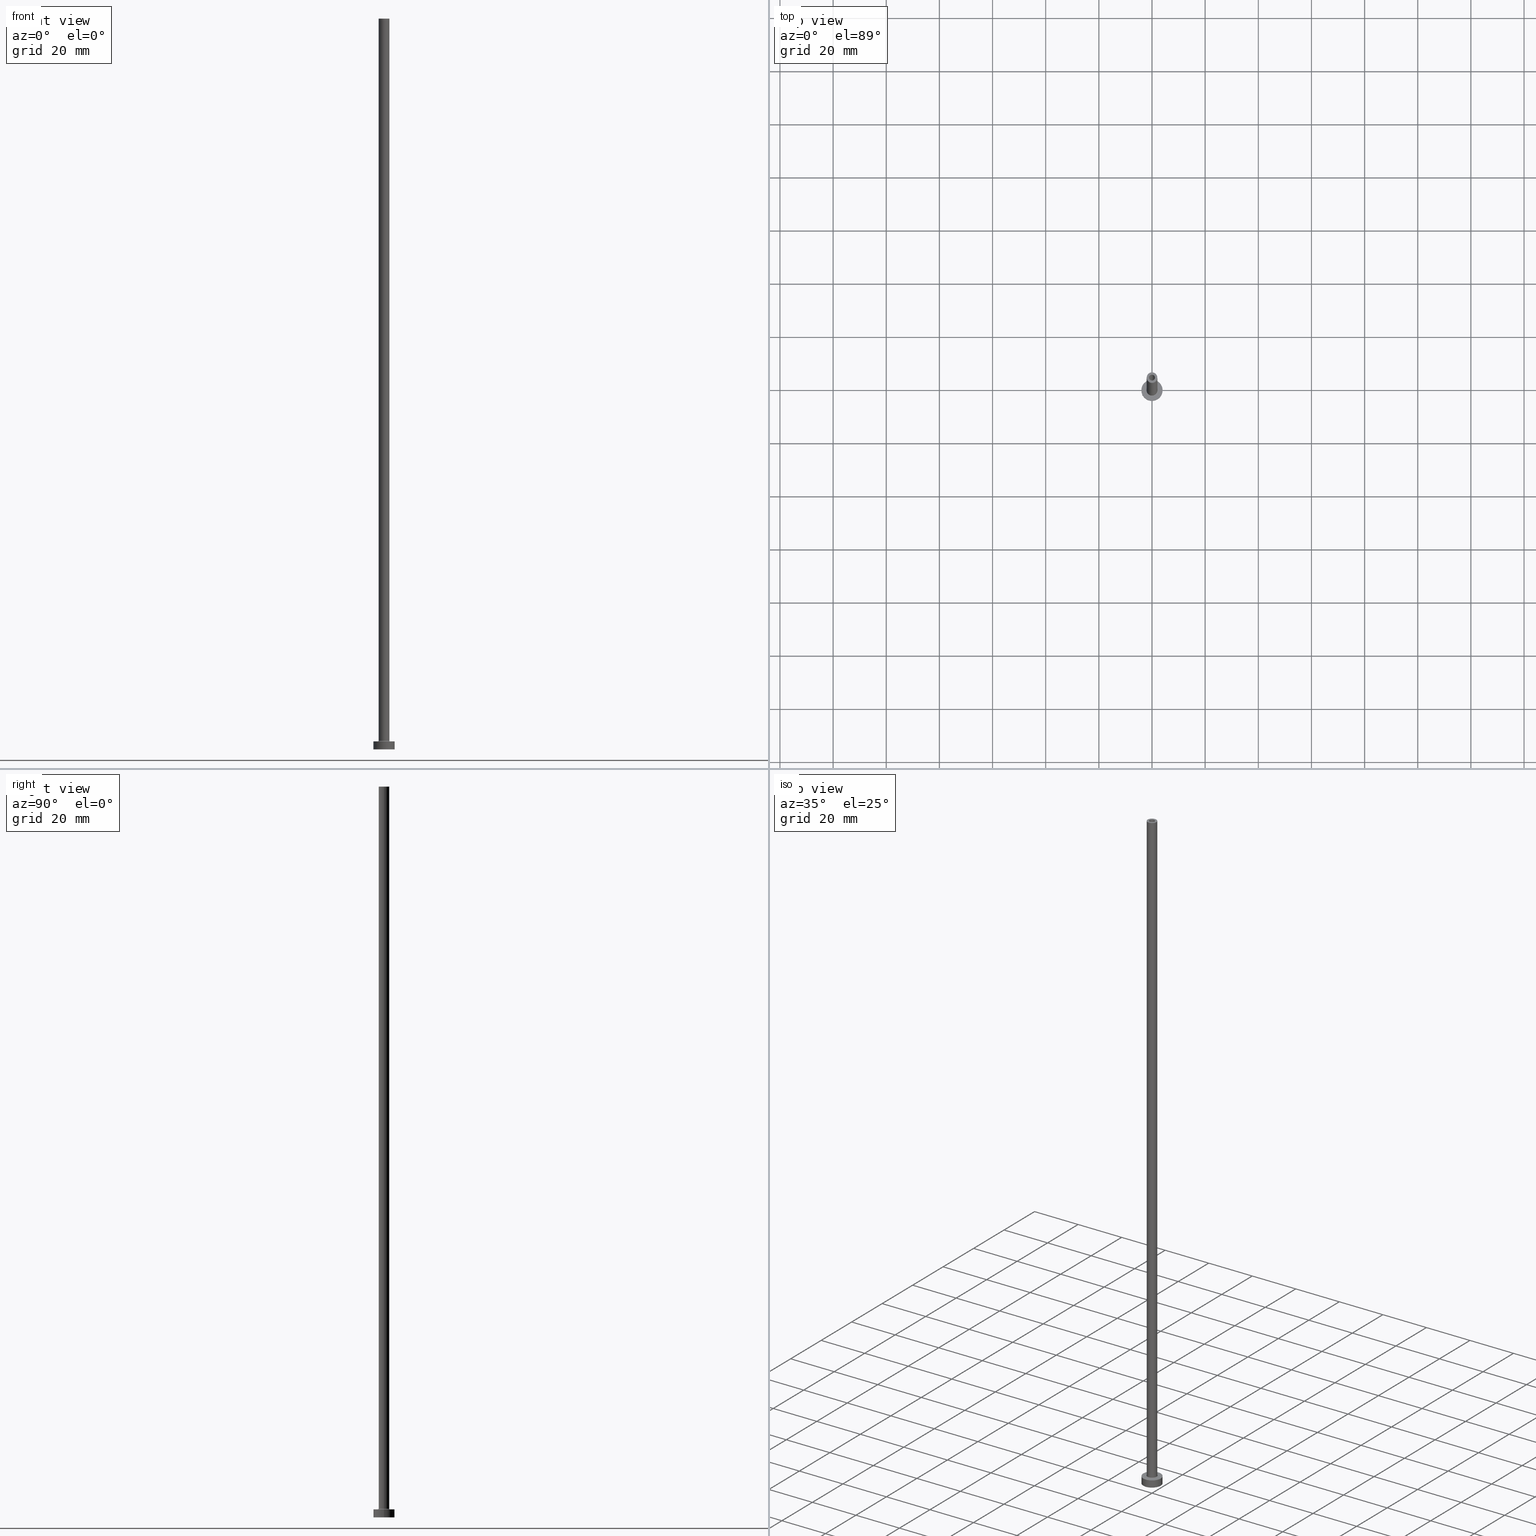
[diagram: canonical four-view strip — front | top / right | iso, engineering-drawing reading convention]
A machine part, canonical four-view strip (front | top / right | iso — engineering-drawing reading convention). The complete STEP part file that produces these views, byte-faithful:
ISO-10303-21;
HEADER;
FILE_DESCRIPTION (( 'STEP AP203' ),
    '1' );
FILE_NAME ('8296.STEP',
    '2023-02-13T18:09:01',
    ( '' ),
    ( '' ),
    'SwSTEP 2.0',
    'SolidWorks 2019',
    '' );
FILE_SCHEMA (( 'CONFIG_CONTROL_DESIGN' ));
ENDSEC;

DATA;
#1 = ORIENTED_EDGE ( 'NONE', *, *, #306, .F. ) ;
#2 = ORIENTED_EDGE ( 'NONE', *, *, #380, .F. ) ;
#3 = ADVANCED_FACE ( 'NONE', ( #186 ), #155, .T. ) ;
#4 = ORIENTED_EDGE ( 'NONE', *, *, #416, .T. ) ;
#5 = AXIS2_PLACEMENT_3D ( 'NONE', #7, #150, #461 ) ;
#6 = DIRECTION ( 'NONE',  ( 1.000000000000000000, 0.000000000000000000, 0.000000000000000000 ) ) ;
#7 = CARTESIAN_POINT ( 'NONE',  ( 0.000000000000000000, 0.000000000000000000, 275.0000000000000000 ) ) ;
#8 = ORIENTED_EDGE ( 'NONE', *, *, #322, .F. ) ;
#9 = CC_DESIGN_PERSON_AND_ORGANIZATION_ASSIGNMENT ( #433, #137, ( #19 ) ) ;
#10 = VECTOR ( 'NONE', #284, 1000.000000000000000 ) ;
#11 = CARTESIAN_POINT ( 'NONE',  ( 0.000000000000000000, 0.000000000000000000, 275.0000000000000000 ) ) ;
#12 = CARTESIAN_POINT ( 'NONE',  ( 1.250000000000000000, 1.530808498934191571E-16, 0.000000000000000000 ) ) ;
#13 = CC_DESIGN_PERSON_AND_ORGANIZATION_ASSIGNMENT ( #159, #448, ( #178 ) ) ;
#14 = DIRECTION ( 'NONE',  ( 0.000000000000000000, 0.000000000000000000, 1.000000000000000000 ) ) ;
#15 = APPROVAL_DATE_TIME ( #49, #89 ) ;
#16 = DIRECTION ( 'NONE',  ( 0.000000000000000000, 0.000000000000000000, -1.000000000000000000 ) ) ;
#17 = CARTESIAN_POINT ( 'NONE',  ( 0.000000000000000000, 0.000000000000000000, 275.0000000000000000 ) ) ;
#18 = VECTOR ( 'NONE', #392, 1000.000000000000000 ) ;
#19 = PRODUCT_DEFINITION_FORMATION_WITH_SPECIFIED_SOURCE ( 'LIBOVOLN�', '', #109, .NOT_KNOWN. ) ;
#20 = ADVANCED_FACE ( 'NONE', ( #415 ), #305, .F. ) ;
#21 = FACE_OUTER_BOUND ( 'NONE', #286, .T. ) ;
#22 = ORIENTED_EDGE ( 'NONE', *, *, #354, .T. ) ;
#23 = AXIS2_PLACEMENT_3D ( 'NONE', #451, #126, #423 ) ;
#24 = CARTESIAN_POINT ( 'NONE',  ( 0.000000000000000000, 0.000000000000000000, 3.000000000000000000 ) ) ;
#25 = APPROVAL_PERSON_ORGANIZATION ( #407, #368, #163 ) ;
#26 = CARTESIAN_POINT ( 'NONE',  ( 0.000000000000000000, 0.000000000000000000, 240.0000000000000284 ) ) ;
#27 = EDGE_CURVE ( 'NONE', #172, #352, #408, .T. ) ;
#28 = CARTESIAN_POINT ( 'NONE',  ( 0.000000000000000000, 0.000000000000000000, 3.000000000000000000 ) ) ;
#29 = VERTEX_POINT ( 'NONE', #50 ) ;
#30 = DIRECTION ( 'NONE',  ( 0.000000000000000000, 0.000000000000000000, 1.000000000000000000 ) ) ;
#31 = AXIS2_PLACEMENT_3D ( 'NONE', #58, #199, #348 ) ;
#32 = DATE_TIME_ROLE ( 'classification_date' ) ;
#33 = FACE_OUTER_BOUND ( 'NONE', #397, .T. ) ;
#34 = ORIENTED_EDGE ( 'NONE', *, *, #153, .F. ) ;
#35 = ADVANCED_FACE ( 'NONE', ( #188 ), #83, .T. ) ;
#36 = AXIS2_PLACEMENT_3D ( 'NONE', #67, #215, #6 ) ;
#37 = CARTESIAN_POINT ( 'NONE',  ( 0.000000000000000000, 0.000000000000000000, 243.5355339059327662 ) ) ;
#38 = AXIS2_PLACEMENT_3D ( 'NONE', #340, #14, #135 ) ;
#39 = DIRECTION ( 'NONE',  ( 1.224646799147353207E-16, 1.000000000000000000, -0.000000000000000000 ) ) ;
#40 =( LENGTH_UNIT ( ) NAMED_UNIT ( * ) SI_UNIT ( .MILLI., .METRE. ) );
#41 = ORIENTED_EDGE ( 'NONE', *, *, #130, .T. ) ;
#42 = DIRECTION ( 'NONE',  ( -0.000000000000000000, -0.000000000000000000, -1.000000000000000000 ) ) ;
#43 = FACE_OUTER_BOUND ( 'NONE', #149, .T. ) ;
#44 = ADVANCED_FACE ( 'NONE', ( #191 ), #161, .F. ) ;
#45 = AXIS2_PLACEMENT_3D ( 'NONE', #75, #371, #176 ) ;
#46 = LOCAL_TIME ( 19, 9, 1.000000000000000000, #391 ) ;
#47 = CARTESIAN_POINT ( 'NONE',  ( 2.000000000000000000, 2.449293598294706414E-16, 275.0000000000000000 ) ) ;
#48 = DIRECTION ( 'NONE',  ( 1.000000000000000000, 0.000000000000000000, 0.000000000000000000 ) ) ;
#49 = DATE_AND_TIME ( #116, #349 ) ;
#50 = CARTESIAN_POINT ( 'NONE',  ( -1.100000000000000089, 0.000000000000000000, 240.0000000000000284 ) ) ;
#51 = DIRECTION ( 'NONE',  ( -1.000000000000000000, 0.000000000000000000, 0.000000000000000000 ) ) ;
#52 = AXIS2_PLACEMENT_3D ( 'NONE', #393, #250, #141 ) ;
#53 = ADVANCED_FACE ( 'NONE', ( #449, #43 ), #450, .F. ) ;
#54 = VERTEX_POINT ( 'NONE', #219 ) ;
#55 = DIRECTION ( 'NONE',  ( -0.000000000000000000, -0.000000000000000000, -1.000000000000000000 ) ) ;
#56 = PLANE ( 'NONE',  #197 ) ;
#57 = CIRCLE ( 'NONE', #36, 4.000000000000000000 ) ;
#58 = CARTESIAN_POINT ( 'NONE',  ( 0.000000000000000000, 0.000000000000000000, 3.300000000000025135 ) ) ;
#59 = AXIS2_PLACEMENT_3D ( 'NONE', #37, #325, #401 ) ;
#60 = EDGE_LOOP ( 'NONE', ( #355, #395, #285, #249 ) ) ;
#61 = CARTESIAN_POINT ( 'NONE',  ( 0.000000000000000000, 0.000000000000000000, 0.000000000000000000 ) ) ;
#62 = ORIENTED_EDGE ( 'NONE', *, *, #66, .F. ) ;
#63 = CARTESIAN_POINT ( 'NONE',  ( 0.000000000000000000, 0.000000000000000000, 0.000000000000000000 ) ) ;
#64 = CALENDAR_DATE ( 2023, 13, 2 ) ;
#65 = CARTESIAN_POINT ( 'NONE',  ( 2.299999999999999822, 0.000000000000000000, 3.300000000000025135 ) ) ;
#66 = EDGE_CURVE ( 'NONE', #54, #202, #410, .T. ) ;
#67 = CARTESIAN_POINT ( 'NONE',  ( 0.000000000000000000, 0.000000000000000000, 3.000000000000000000 ) ) ;
#68 = DIRECTION ( 'NONE',  ( 0.000000000000000000, 0.000000000000000000, 1.000000000000000000 ) ) ;
#69 = ORIENTED_EDGE ( 'NONE', *, *, #343, .T. ) ;
#70 = DIRECTION ( 'NONE',  ( 0.000000000000000000, 0.000000000000000000, -1.000000000000000000 ) ) ;
#71 = ORIENTED_EDGE ( 'NONE', *, *, #160, .F. ) ;
#72 = MANIFOLD_SOLID_BREP ( 'Odebrat vysunut�m4', #242 ) ;
#73 = AXIS2_PLACEMENT_3D ( 'NONE', #61, #316, #440 ) ;
#74 = VERTEX_POINT ( 'NONE', #336 ) ;
#75 = CARTESIAN_POINT ( 'NONE',  ( 0.000000000000000000, 0.000000000000000000, 240.0000000000000284 ) ) ;
#76 = ORIENTED_EDGE ( 'NONE', *, *, #373, .T. ) ;
#77 = DIRECTION ( 'NONE',  ( 1.000000000000000000, 0.000000000000000000, -0.000000000000000000 ) ) ;
#78 = EDGE_LOOP ( 'NONE', ( #390, #365, #213, #329 ) ) ;
#79 = ADVANCED_FACE ( 'NONE', ( #294, #113 ), #56, .T. ) ;
#80 = DIRECTION ( 'NONE',  ( -0.000000000000000000, -0.000000000000000000, -1.000000000000000000 ) ) ;
#81 = TOROIDAL_SURFACE ( 'NONE', #31, 2.299999999999999822, 0.2999999999999999889 ) ;
#82 = APPLICATION_PROTOCOL_DEFINITION ( 'international standard', 'config_control_design', 1994, #110 ) ;
#83 = CYLINDRICAL_SURFACE ( 'NONE', #220, 4.000000000000000000 ) ;
#84 = PERSON_AND_ORGANIZATION ( #258, #430 ) ;
#85 = APPLICATION_CONTEXT ( 'configuration controlled 3d designs of mechanical parts and assemblies' ) ;
#86 = CIRCLE ( 'NONE', #382, 1.100000000000000089 ) ;
#87 = ORIENTED_EDGE ( 'NONE', *, *, #271, .T. ) ;
#88 = DIRECTION ( 'NONE',  ( 0.000000000000000000, 0.000000000000000000, -1.000000000000000000 ) ) ;
#89 = APPROVAL ( #299, 'NEUR�EN�' ) ;
#90 = UNCERTAINTY_MEASURE_WITH_UNIT (LENGTH_MEASURE( 1.000000000000000082E-05 ), #40, 'distance_accuracy_value', 'NONE');
#91 = CARTESIAN_POINT ( 'NONE',  ( -4.000000000000000000, 0.000000000000000000, 3.000000000000000000 ) ) ;
#92 = AXIS2_PLACEMENT_3D ( 'NONE', #359, #39, #243 ) ;
#93 = ORIENTED_EDGE ( 'NONE', *, *, #130, .F. ) ;
#94 = PRODUCT_RELATED_PRODUCT_CATEGORY ( 'detail', '', ( #109 ) ) ;
#95 = FACE_OUTER_BOUND ( 'NONE', #240, .T. ) ;
#96 = CIRCLE ( 'NONE', #404, 1.100000000000000089 ) ;
#97 = ORIENTED_EDGE ( 'NONE', *, *, #388, .T. ) ;
#98 = ADVANCED_FACE ( 'NONE', ( #138 ), #148, .T. ) ;
#99 = ORIENTED_EDGE ( 'NONE', *, *, #121, .F. ) ;
#100 = CC_DESIGN_PERSON_AND_ORGANIZATION_ASSIGNMENT ( #323, #206, ( #19 ) ) ;
#101 = CARTESIAN_POINT ( 'NONE',  ( 4.000000000000000000, 4.898587196589412829E-16, 3.000000000000000000 ) ) ;
#102 = CIRCLE ( 'NONE', #128, 1.250000000000000000 ) ;
#103 = DIRECTION ( 'NONE',  ( 1.000000000000000000, 0.000000000000000000, 0.000000000000000000 ) ) ;
#104 = EDGE_CURVE ( 'NONE', #277, #402, #57, .T. ) ;
#105 = LINE ( 'NONE', #328, #10 ) ;
#106 = EDGE_LOOP ( 'NONE', ( #362, #143 ) ) ;
#107 = CC_DESIGN_PERSON_AND_ORGANIZATION_ASSIGNMENT ( #241, #173, ( #265 ) ) ;
#108 = DIRECTION ( 'NONE',  ( 1.000000000000000000, 0.000000000000000000, 0.000000000000000000 ) ) ;
#109 = PRODUCT ( '8296', '8296', '', ( #414 ) ) ;
#110 = APPLICATION_CONTEXT ( 'configuration controlled 3d designs of mechanical parts and assemblies' ) ;
#111 = CALENDAR_DATE ( 2023, 13, 2 ) ;
#112 = PERSON_AND_ORGANIZATION_ROLE ( 'design_owner' ) ;
#113 = FACE_OUTER_BOUND ( 'NONE', #147, .T. ) ;
#114 = CYLINDRICAL_SURFACE ( 'NONE', #444, 1.100000000000000089 ) ;
#115 = AXIS2_PLACEMENT_3D ( 'NONE', #264, #375, #51 ) ;
#116 = CALENDAR_DATE ( 2023, 13, 2 ) ;
#117 = ORIENTED_EDGE ( 'NONE', *, *, #203, .F. ) ;
#118 =( GEOMETRIC_REPRESENTATION_CONTEXT ( 3 ) GLOBAL_UNCERTAINTY_ASSIGNED_CONTEXT ( ( #90 ) ) GLOBAL_UNIT_ASSIGNED_CONTEXT ( ( #40, #175, #321 ) ) REPRESENTATION_CONTEXT ( 'NONE', 'WORKASPACE' ) );
#119 = CALENDAR_DATE ( 2023, 13, 2 ) ;
#120 = CARTESIAN_POINT ( 'NONE',  ( 0.000000000000000000, 0.000000000000000000, 240.0000000000000284 ) ) ;
#121 = EDGE_CURVE ( 'NONE', #326, #290, #298, .T. ) ;
#122 = FACE_OUTER_BOUND ( 'NONE', #387, .T. ) ;
#123 = PERSON_AND_ORGANIZATION ( #258, #430 ) ;
#124 = DIRECTION ( 'NONE',  ( -1.000000000000000000, 0.000000000000000000, 0.000000000000000000 ) ) ;
#125 = APPROVAL_STATUS ( 'not_yet_approved' ) ;
#126 = DIRECTION ( 'NONE',  ( -0.000000000000000000, -0.000000000000000000, -1.000000000000000000 ) ) ;
#127 = FACE_OUTER_BOUND ( 'NONE', #439, .T. ) ;
#128 = AXIS2_PLACEMENT_3D ( 'NONE', #425, #381, #48 ) ;
#129 = APPROVAL_PERSON_ORGANIZATION ( #123, #89, #263 ) ;
#130 = EDGE_CURVE ( 'NONE', #202, #350, #458, .T. ) ;
#131 = DIRECTION ( 'NONE',  ( 0.000000000000000000, 0.000000000000000000, 1.000000000000000000 ) ) ;
#132 = CARTESIAN_POINT ( 'NONE',  ( 1.100000000000000089, 1.347111479062088503E-16, 240.0000000000000284 ) ) ;
#133 = CIRCLE ( 'NONE', #45, 1.250000000000000000 ) ;
#134 = ORIENTED_EDGE ( 'NONE', *, *, #121, .T. ) ;
#135 = DIRECTION ( 'NONE',  ( 1.000000000000000000, 0.000000000000000000, 0.000000000000000000 ) ) ;
#136 = EDGE_CURVE ( 'NONE', #202, #54, #293, .T. ) ;
#137 = PERSON_AND_ORGANIZATION_ROLE ( 'creator' ) ;
#138 = FACE_OUTER_BOUND ( 'NONE', #313, .T. ) ;
#139 = DIRECTION ( 'NONE',  ( 1.000000000000000000, 0.000000000000000000, 0.000000000000000000 ) ) ;
#140 = VERTEX_POINT ( 'NONE', #363 ) ;
#141 = DIRECTION ( 'NONE',  ( 1.000000000000000000, 0.000000000000000000, 0.000000000000000000 ) ) ;
#142 = ORIENTED_EDGE ( 'NONE', *, *, #426, .T. ) ;
#143 = ORIENTED_EDGE ( 'NONE', *, *, #253, .T. ) ;
#144 = EDGE_CURVE ( 'NONE', #459, #290, #229, .T. ) ;
#145 = CARTESIAN_POINT ( 'NONE',  ( 0.000000000000000000, 0.000000000000000000, 240.0000000000000284 ) ) ;
#146 = AXIS2_PLACEMENT_3D ( 'NONE', #421, #230, #195 ) ;
#147 = EDGE_LOOP ( 'NONE', ( #273, #69 ) ) ;
#148 = CYLINDRICAL_SURFACE ( 'NONE', #234, 2.000000000000000000 ) ;
#149 = EDGE_LOOP ( 'NONE', ( #251, #311 ) ) ;
#150 = DIRECTION ( 'NONE',  ( 0.000000000000000000, 0.000000000000000000, 1.000000000000000000 ) ) ;
#151 = VERTEX_POINT ( 'NONE', #400 ) ;
#152 = AXIS2_PLACEMENT_3D ( 'NONE', #63, #207, #385 ) ;
#153 = EDGE_CURVE ( 'NONE', #347, #151, #222, .T. ) ;
#154 = APPROVAL_STATUS ( 'not_yet_approved' ) ;
#155 = CYLINDRICAL_SURFACE ( 'NONE', #192, 2.000000000000000000 ) ;
#156 = CARTESIAN_POINT ( 'NONE',  ( 2.000000000000000000, 2.449293598294706414E-16, 275.0000000000000000 ) ) ;
#157 = APPROVAL ( #125, 'NEUR�EN�' ) ;
#158 = EDGE_LOOP ( 'NONE', ( #2, #134, #267, #315 ) ) ;
#159 = PERSON_AND_ORGANIZATION ( #258, #430 ) ;
#160 = EDGE_CURVE ( 'NONE', #236, #326, #346, .T. ) ;
#161 = CYLINDRICAL_SURFACE ( 'NONE', #435, 1.250000000000000000 ) ;
#162 = CARTESIAN_POINT ( 'NONE',  ( -2.000000000000000000, 0.000000000000000000, 275.0000000000000000 ) ) ;
#163 = APPROVAL_ROLE ( '' ) ;
#164 = CARTESIAN_POINT ( 'NONE',  ( -1.100000000000000089, 0.000000000000000000, 275.0000000000000000 ) ) ;
#165 = DIRECTION ( 'NONE',  ( 1.000000000000000000, 0.000000000000000000, -0.000000000000000000 ) ) ;
#166 = ORIENTED_EDGE ( 'NONE', *, *, #253, .F. ) ;
#167 = AXIS2_PLACEMENT_3D ( 'NONE', #28, #55, #384 ) ;
#168 = ADVANCED_FACE ( 'NONE', ( #122 ), #114, .F. ) ;
#169 = ORIENTED_EDGE ( 'NONE', *, *, #431, .T. ) ;
#170 = ORIENTED_EDGE ( 'NONE', *, *, #416, .F. ) ;
#171 = CIRCLE ( 'NONE', #52, 2.000000000000000000 ) ;
#172 = VERTEX_POINT ( 'NONE', #156 ) ;
#173 = PERSON_AND_ORGANIZATION_ROLE ( 'classification_officer' ) ;
#174 = DIRECTION ( 'NONE',  ( -1.000000000000000000, 0.000000000000000000, 0.000000000000000000 ) ) ;
#175 =( NAMED_UNIT ( * ) PLANE_ANGLE_UNIT ( ) SI_UNIT ( $, .RADIAN. ) );
#176 = DIRECTION ( 'NONE',  ( 1.000000000000000000, 0.000000000000000000, 0.000000000000000000 ) ) ;
#177 = ORIENTED_EDGE ( 'NONE', *, *, #218, .T. ) ;
#178 = PRODUCT_DEFINITION ( 'NEZN�M�', '', #19, #309 ) ;
#179 = COORDINATED_UNIVERSAL_TIME_OFFSET ( 1, 0, .AHEAD. ) ;
#180 = DIRECTION ( 'NONE',  ( 0.000000000000000000, 0.000000000000000000, 1.000000000000000000 ) ) ;
#181 = EDGE_LOOP ( 'NONE', ( #255, #41, #279, #317 ) ) ;
#182 = CARTESIAN_POINT ( 'NONE',  ( 0.000000000000000000, 0.000000000000000000, 275.0000000000000000 ) ) ;
#183 = ORIENTED_EDGE ( 'NONE', *, *, #354, .F. ) ;
#184 = ORIENTED_EDGE ( 'NONE', *, *, #203, .T. ) ;
#185 = ORIENTED_EDGE ( 'NONE', *, *, #388, .F. ) ;
#186 = FACE_OUTER_BOUND ( 'NONE', #78, .T. ) ;
#187 = AXIS2_PLACEMENT_3D ( 'NONE', #370, #345, #266 ) ;
#188 = FACE_OUTER_BOUND ( 'NONE', #424, .T. ) ;
#189 = CARTESIAN_POINT ( 'NONE',  ( -2.000000000000000000, 0.000000000000000000, 275.0000000000000000 ) ) ;
#190 = EDGE_CURVE ( 'NONE', #54, #29, #376, .T. ) ;
#191 = FACE_OUTER_BOUND ( 'NONE', #60, .T. ) ;
#192 = AXIS2_PLACEMENT_3D ( 'NONE', #11, #378, #261 ) ;
#193 = CARTESIAN_POINT ( 'NONE',  ( 0.000000000000000000, 0.000000000000000000, 0.000000000000000000 ) ) ;
#194 = APPROVAL_PERSON_ORGANIZATION ( #84, #157, #441 ) ;
#195 = DIRECTION ( 'NONE',  ( 1.000000000000000000, 0.000000000000000000, 0.000000000000000000 ) ) ;
#196 = ORIENTED_EDGE ( 'NONE', *, *, #153, .T. ) ;
#197 = AXIS2_PLACEMENT_3D ( 'NONE', #24, #312, #351 ) ;
#198 = ORIENTED_EDGE ( 'NONE', *, *, #27, .T. ) ;
#199 = DIRECTION ( 'NONE',  ( 0.000000000000000000, 0.000000000000000000, 1.000000000000000000 ) ) ;
#200 = CIRCLE ( 'NONE', #5, 2.000000000000000000 ) ;
#201 = DIRECTION ( 'NONE',  ( -0.000000000000000000, -0.000000000000000000, -1.000000000000000000 ) ) ;
#202 = VERTEX_POINT ( 'NONE', #307 ) ;
#203 = EDGE_CURVE ( 'NONE', #352, #326, #287, .T. ) ;
#204 = CARTESIAN_POINT ( 'NONE',  ( 0.000000000000000000, 0.000000000000000000, 0.000000000000000000 ) ) ;
#205 = ORIENTED_EDGE ( 'NONE', *, *, #104, .F. ) ;
#206 = PERSON_AND_ORGANIZATION_ROLE ( 'design_supplier' ) ;
#207 = DIRECTION ( 'NONE',  ( -0.000000000000000000, -0.000000000000000000, -1.000000000000000000 ) ) ;
#208 = VECTOR ( 'NONE', #201, 1000.000000000000000 ) ;
#209 = LINE ( 'NONE', #101, #344 ) ;
#210 = VERTEX_POINT ( 'NONE', #12 ) ;
#211 = FACE_OUTER_BOUND ( 'NONE', #158, .T. ) ;
#212 = ADVANCED_BREP_SHAPE_REPRESENTATION ( '8296', ( #72, #216 ), #118 ) ;
#213 = ORIENTED_EDGE ( 'NONE', *, *, #160, .T. ) ;
#214 = APPROVAL_DATE_TIME ( #239, #157 ) ;
#215 = DIRECTION ( 'NONE',  ( 0.000000000000000000, 0.000000000000000000, 1.000000000000000000 ) ) ;
#216 = AXIS2_PLACEMENT_3D ( 'NONE', #193, #296, #259 ) ;
#217 = ORIENTED_EDGE ( 'NONE', *, *, #248, .T. ) ;
#218 = EDGE_CURVE ( 'NONE', #140, #394, #102, .T. ) ;
#219 = CARTESIAN_POINT ( 'NONE',  ( -1.100000000000000089, 0.000000000000000000, 275.0000000000000000 ) ) ;
#220 = AXIS2_PLACEMENT_3D ( 'NONE', #339, #225, #124 ) ;
#221 = COORDINATED_UNIVERSAL_TIME_OFFSET ( 1, 0, .AHEAD. ) ;
#222 = CIRCLE ( 'NONE', #187, 4.000000000000000000 ) ;
#223 = ADVANCED_FACE ( 'NONE', ( #303, #21 ), #342, .T. ) ;
#224 = DIRECTION ( 'NONE',  ( -1.000000000000000000, 0.000000000000000000, 0.000000000000000000 ) ) ;
#225 = DIRECTION ( 'NONE',  ( -0.000000000000000000, -0.000000000000000000, -1.000000000000000000 ) ) ;
#226 = DIRECTION ( 'NONE',  ( -0.000000000000000000, -0.000000000000000000, -1.000000000000000000 ) ) ;
#227 = DIRECTION ( 'NONE',  ( 0.000000000000000000, 0.000000000000000000, -1.000000000000000000 ) ) ;
#228 = AXIS2_PLACEMENT_3D ( 'NONE', #270, #372, #420 ) ;
#229 = CIRCLE ( 'NONE', #335, 2.299999999999999822 ) ;
#230 = DIRECTION ( 'NONE',  ( 0.000000000000000000, 0.000000000000000000, 1.000000000000000000 ) ) ;
#231 = VECTOR ( 'NONE', #226, 1000.000000000000000 ) ;
#232 = CC_DESIGN_APPROVAL ( #157, ( #19 ) ) ;
#233 = ADVANCED_FACE ( 'NONE', ( #127 ), #262, .T. ) ;
#234 = AXIS2_PLACEMENT_3D ( 'NONE', #182, #320, #174 ) ;
#235 = CARTESIAN_POINT ( 'NONE',  ( -2.000000000000000000, 0.000000000000000000, 3.300000000000025135 ) ) ;
#236 = VERTEX_POINT ( 'NONE', #189 ) ;
#237 = PLANE ( 'NONE',  #73 ) ;
#238 = CC_DESIGN_DATE_AND_TIME_ASSIGNMENT ( #358, #32, ( #265 ) ) ;
#239 = DATE_AND_TIME ( #319, #246 ) ;
#240 = EDGE_LOOP ( 'NONE', ( #34, #183 ) ) ;
#241 = PERSON_AND_ORGANIZATION ( #258, #430 ) ;
#242 = CLOSED_SHELL ( 'NONE', ( #20, #44, #443, #98, #35, #233, #79, #275, #3, #223, #260, #447, #53, #168 ) ) ;
#243 = DIRECTION ( 'NONE',  ( -1.000000000000000000, 1.224646799147353207E-16, 0.000000000000000000 ) ) ;
#244 = ORIENTED_EDGE ( 'NONE', *, *, #190, .T. ) ;
#245 = VECTOR ( 'NONE', #274, 1000.000000000000000 ) ;
#246 = LOCAL_TIME ( 19, 9, 1.000000000000000000, #179 ) ;
#247 = DIRECTION ( 'NONE',  ( -0.000000000000000000, -0.000000000000000000, -1.000000000000000000 ) ) ;
#248 = EDGE_CURVE ( 'NONE', #236, #172, #301, .T. ) ;
#249 = ORIENTED_EDGE ( 'NONE', *, *, #373, .F. ) ;
#250 = DIRECTION ( 'NONE',  ( 0.000000000000000000, 0.000000000000000000, 1.000000000000000000 ) ) ;
#251 = ORIENTED_EDGE ( 'NONE', *, *, #291, .F. ) ;
#252 = CARTESIAN_POINT ( 'NONE',  ( 2.299999999999999822, 0.000000000000000000, 3.000000000000012434 ) ) ;
#253 = EDGE_CURVE ( 'NONE', #290, #459, #452, .T. ) ;
#254 = CC_DESIGN_APPROVAL ( #368, ( #265 ) ) ;
#255 = ORIENTED_EDGE ( 'NONE', *, *, #66, .T. ) ;
#256 = CARTESIAN_POINT ( 'NONE',  ( -4.000000000000000000, 0.000000000000000000, 3.000000000000000000 ) ) ;
#257 = ORIENTED_EDGE ( 'NONE', *, *, #366, .F. ) ;
#258 = PERSON ( 'NEUR�EN�', 'NEUR�EN�', 'NEUR�EN�', ('NEUR�EN�'), ('NEUR�EN�'), ('NEUR�EN�') ) ;
#259 = DIRECTION ( 'NONE',  ( 1.000000000000000000, 0.000000000000000000, 0.000000000000000000 ) ) ;
#260 = ADVANCED_FACE ( 'NONE', ( #356 ), #81, .F. ) ;
#261 = DIRECTION ( 'NONE',  ( -1.000000000000000000, 0.000000000000000000, 0.000000000000000000 ) ) ;
#262 = CYLINDRICAL_SURFACE ( 'NONE', #278, 4.000000000000000000 ) ;
#263 = APPROVAL_ROLE ( '' ) ;
#264 = CARTESIAN_POINT ( 'NONE',  ( 0.000000000000000000, 0.000000000000000000, 275.0000000000000000 ) ) ;
#265 = SECURITY_CLASSIFICATION ( '', '', #280 ) ;
#266 = DIRECTION ( 'NONE',  ( 1.000000000000000000, 0.000000000000000000, 0.000000000000000000 ) ) ;
#267 = ORIENTED_EDGE ( 'NONE', *, *, #144, .F. ) ;
#268 = DIRECTION ( 'NONE',  ( -1.000000000000000000, 0.000000000000000000, 0.000000000000000000 ) ) ;
#269 = COORDINATED_UNIVERSAL_TIME_OFFSET ( 1, 0, .AHEAD. ) ;
#270 = CARTESIAN_POINT ( 'NONE',  ( 0.000000000000000000, 0.000000000000000000, 275.0000000000000000 ) ) ;
#271 = EDGE_CURVE ( 'NONE', #29, #350, #86, .T. ) ;
#272 = TOROIDAL_SURFACE ( 'NONE', #367, 2.299999999999999822, 0.2999999999999999889 ) ;
#273 = ORIENTED_EDGE ( 'NONE', *, *, #104, .T. ) ;
#274 = DIRECTION ( 'NONE',  ( 0.000000000000000000, 0.000000000000000000, -1.000000000000000000 ) ) ;
#275 = ADVANCED_FACE ( 'NONE', ( #429, #95 ), #237, .F. ) ;
#276 = DIRECTION ( 'NONE',  ( 1.000000000000000000, 0.000000000000000000, 0.000000000000000000 ) ) ;
#277 = VERTEX_POINT ( 'NONE', #256 ) ;
#278 = AXIS2_PLACEMENT_3D ( 'NONE', #411, #80, #224 ) ;
#279 = ORIENTED_EDGE ( 'NONE', *, *, #271, .F. ) ;
#280 = SECURITY_CLASSIFICATION_LEVEL ( 'unclassified' ) ;
#281 = CARTESIAN_POINT ( 'NONE',  ( 1.100000000000000089, 1.347111479062088503E-16, 275.0000000000000000 ) ) ;
#282 = AXIS2_PLACEMENT_3D ( 'NONE', #120, #418, #77 ) ;
#283 = DIRECTION ( 'NONE',  ( 1.000000000000000000, 0.000000000000000000, 0.000000000000000000 ) ) ;
#284 = DIRECTION ( 'NONE',  ( 0.000000000000000000, 0.000000000000000000, -1.000000000000000000 ) ) ;
#285 = ORIENTED_EDGE ( 'NONE', *, *, #366, .T. ) ;
#286 = EDGE_LOOP ( 'NONE', ( #217, #169 ) ) ;
#287 = CIRCLE ( 'NONE', #146, 2.000000000000000000 ) ;
#288 = LOCAL_TIME ( 19, 9, 1.000000000000000000, #445 ) ;
#289 = EDGE_LOOP ( 'NONE', ( #87, #4 ) ) ;
#290 = VERTEX_POINT ( 'NONE', #406 ) ;
#291 = EDGE_CURVE ( 'NONE', #394, #140, #133, .T. ) ;
#292 = CARTESIAN_POINT ( 'NONE',  ( 0.000000000000000000, 0.000000000000000000, 3.300000000000025135 ) ) ;
#293 = CIRCLE ( 'NONE', #422, 1.100000000000000089 ) ;
#294 = FACE_BOUND ( 'NONE', #106, .T. ) ;
#295 = DIRECTION ( 'NONE',  ( 0.000000000000000000, 0.000000000000000000, 1.000000000000000000 ) ) ;
#296 = DIRECTION ( 'NONE',  ( 0.000000000000000000, 0.000000000000000000, 1.000000000000000000 ) ) ;
#297 = ORIENTED_EDGE ( 'NONE', *, *, #343, .F. ) ;
#298 = CIRCLE ( 'NONE', #92, 0.2999999999999999334 ) ;
#299 = APPROVAL_STATUS ( 'not_yet_approved' ) ;
#300 = DIRECTION ( 'NONE',  ( -1.000000000000000000, 0.000000000000000000, 0.000000000000000000 ) ) ;
#301 = CIRCLE ( 'NONE', #38, 2.000000000000000000 ) ;
#302 = CC_DESIGN_APPROVAL ( #89, ( #178 ) ) ;
#303 = FACE_BOUND ( 'NONE', #361, .T. ) ;
#304 = DATE_AND_TIME ( #111, #288 ) ;
#305 = CYLINDRICAL_SURFACE ( 'NONE', #115, 1.100000000000000089 ) ;
#306 = EDGE_CURVE ( 'NONE', #140, #210, #334, .T. ) ;
#307 = CARTESIAN_POINT ( 'NONE',  ( 1.100000000000000089, 1.347111479062088503E-16, 275.0000000000000000 ) ) ;
#308 = DIRECTION ( 'NONE',  ( 1.000000000000000000, 0.000000000000000000, 0.000000000000000000 ) ) ;
#309 = DESIGN_CONTEXT ( 'detailed design', #110, 'design' ) ;
#310 = CIRCLE ( 'NONE', #152, 1.250000000000000000 ) ;
#311 = ORIENTED_EDGE ( 'NONE', *, *, #218, .F. ) ;
#312 = DIRECTION ( 'NONE',  ( 0.000000000000000000, 0.000000000000000000, 1.000000000000000000 ) ) ;
#313 = EDGE_LOOP ( 'NONE', ( #327, #198, #184, #71 ) ) ;
#314 = DIRECTION ( 'NONE',  ( 1.000000000000000000, 0.000000000000000000, 0.000000000000000000 ) ) ;
#315 = ORIENTED_EDGE ( 'NONE', *, *, #426, .F. ) ;
#316 = DIRECTION ( 'NONE',  ( 0.000000000000000000, 0.000000000000000000, 1.000000000000000000 ) ) ;
#317 = ORIENTED_EDGE ( 'NONE', *, *, #190, .F. ) ;
#318 = AXIS2_PLACEMENT_3D ( 'NONE', #204, #30, #308 ) ;
#319 = CALENDAR_DATE ( 2023, 13, 2 ) ;
#320 = DIRECTION ( 'NONE',  ( -0.000000000000000000, -0.000000000000000000, -1.000000000000000000 ) ) ;
#321 =( NAMED_UNIT ( * ) SI_UNIT ( $, .STERADIAN. ) SOLID_ANGLE_UNIT ( ) );
#322 = EDGE_CURVE ( 'NONE', #277, #347, #428, .T. ) ;
#323 = PERSON_AND_ORGANIZATION ( #258, #430 ) ;
#324 = CARTESIAN_POINT ( 'NONE',  ( 0.000000000000000000, 0.000000000000000000, 275.0000000000000000 ) ) ;
#325 = DIRECTION ( 'NONE',  ( 0.000000000000000000, 0.000000000000000000, -1.000000000000000000 ) ) ;
#326 = VERTEX_POINT ( 'NONE', #235 ) ;
#327 = ORIENTED_EDGE ( 'NONE', *, *, #431, .F. ) ;
#328 = CARTESIAN_POINT ( 'NONE',  ( -1.250000000000000000, 0.000000000000000000, 243.5355339059327662 ) ) ;
#329 = ORIENTED_EDGE ( 'NONE', *, *, #380, .T. ) ;
#330 = AXIS2_PLACEMENT_3D ( 'NONE', #17, #295, #165 ) ;
#331 = CYLINDRICAL_SURFACE ( 'NONE', #59, 1.250000000000000000 ) ;
#332 = ORIENTED_EDGE ( 'NONE', *, *, #338, .T. ) ;
#333 = DIRECTION ( 'NONE',  ( -0.000000000000000000, -0.000000000000000000, -1.000000000000000000 ) ) ;
#334 = LINE ( 'NONE', #398, #245 ) ;
#335 = AXIS2_PLACEMENT_3D ( 'NONE', #437, #247, #103 ) ;
#336 = CARTESIAN_POINT ( 'NONE',  ( -1.250000000000000000, 0.000000000000000000, 0.000000000000000000 ) ) ;
#337 = CARTESIAN_POINT ( 'NONE',  ( 0.000000000000000000, 0.000000000000000000, 275.0000000000000000 ) ) ;
#338 = EDGE_CURVE ( 'NONE', #74, #210, #310, .T. ) ;
#339 = CARTESIAN_POINT ( 'NONE',  ( 0.000000000000000000, 0.000000000000000000, 3.000000000000000000 ) ) ;
#340 = CARTESIAN_POINT ( 'NONE',  ( 0.000000000000000000, 0.000000000000000000, 275.0000000000000000 ) ) ;
#341 = CARTESIAN_POINT ( 'NONE',  ( 0.000000000000000000, 0.000000000000000000, 243.5355339059327662 ) ) ;
#342 = PLANE ( 'NONE',  #330 ) ;
#343 = EDGE_CURVE ( 'NONE', #402, #277, #374, .T. ) ;
#344 = VECTOR ( 'NONE', #333, 1000.000000000000000 ) ;
#345 = DIRECTION ( 'NONE',  ( 0.000000000000000000, 0.000000000000000000, 1.000000000000000000 ) ) ;
#346 = LINE ( 'NONE', #162, #231 ) ;
#347 = VERTEX_POINT ( 'NONE', #453 ) ;
#348 = DIRECTION ( 'NONE',  ( 1.000000000000000000, 0.000000000000000000, 0.000000000000000000 ) ) ;
#349 = LOCAL_TIME ( 19, 9, 1.000000000000000000, #221 ) ;
#350 = VERTEX_POINT ( 'NONE', #132 ) ;
#351 = DIRECTION ( 'NONE',  ( 1.000000000000000000, 0.000000000000000000, -0.000000000000000000 ) ) ;
#352 = VERTEX_POINT ( 'NONE', #353 ) ;
#353 = CARTESIAN_POINT ( 'NONE',  ( 2.000000000000000000, 2.449293598294706414E-16, 3.300000000000025135 ) ) ;
#354 = EDGE_CURVE ( 'NONE', #151, #347, #455, .T. ) ;
#355 = ORIENTED_EDGE ( 'NONE', *, *, #291, .T. ) ;
#356 = FACE_OUTER_BOUND ( 'NONE', #369, .T. ) ;
#357 = VECTOR ( 'NONE', #227, 1000.000000000000000 ) ;
#358 = DATE_AND_TIME ( #64, #46 ) ;
#359 = CARTESIAN_POINT ( 'NONE',  ( -2.299999999999999822, 2.816687638038912056E-16, 3.300000000000025135 ) ) ;
#360 = DIRECTION ( 'NONE',  ( 0.000000000000000000, -1.000000000000000000, 0.000000000000000000 ) ) ;
#361 = EDGE_LOOP ( 'NONE', ( #62, #405 ) ) ;
#362 = ORIENTED_EDGE ( 'NONE', *, *, #144, .T. ) ;
#363 = CARTESIAN_POINT ( 'NONE',  ( 1.250000000000000000, 1.530808498934191571E-16, 240.0000000000000284 ) ) ;
#364 = CARTESIAN_POINT ( 'NONE',  ( -1.250000000000000000, 0.000000000000000000, 240.0000000000000284 ) ) ;
#365 = ORIENTED_EDGE ( 'NONE', *, *, #248, .F. ) ;
#366 = EDGE_CURVE ( 'NONE', #210, #74, #442, .T. ) ;
#367 = AXIS2_PLACEMENT_3D ( 'NONE', #292, #180, #108 ) ;
#368 = APPROVAL ( #154, 'NEUR�EN�' ) ;
#369 = EDGE_LOOP ( 'NONE', ( #99, #117, #142, #166 ) ) ;
#370 = CARTESIAN_POINT ( 'NONE',  ( 0.000000000000000000, 0.000000000000000000, 0.000000000000000000 ) ) ;
#371 = DIRECTION ( 'NONE',  ( 0.000000000000000000, 0.000000000000000000, 1.000000000000000000 ) ) ;
#372 = DIRECTION ( 'NONE',  ( 0.000000000000000000, 0.000000000000000000, 1.000000000000000000 ) ) ;
#373 = EDGE_CURVE ( 'NONE', #394, #74, #105, .T. ) ;
#374 = CIRCLE ( 'NONE', #438, 4.000000000000000000 ) ;
#375 = DIRECTION ( 'NONE',  ( 0.000000000000000000, 0.000000000000000000, -1.000000000000000000 ) ) ;
#376 = LINE ( 'NONE', #164, #357 ) ;
#377 = APPROVAL_DATE_TIME ( #304, #368 ) ;
#378 = DIRECTION ( 'NONE',  ( -0.000000000000000000, -0.000000000000000000, -1.000000000000000000 ) ) ;
#379 = SHAPE_DEFINITION_REPRESENTATION ( #412, #212 ) ;
#380 = EDGE_CURVE ( 'NONE', #326, #352, #171, .T. ) ;
#381 = DIRECTION ( 'NONE',  ( 0.000000000000000000, 0.000000000000000000, 1.000000000000000000 ) ) ;
#382 = AXIS2_PLACEMENT_3D ( 'NONE', #26, #131, #276 ) ;
#383 = CC_DESIGN_SECURITY_CLASSIFICATION ( #265, ( #19 ) ) ;
#384 = DIRECTION ( 'NONE',  ( 1.000000000000000000, 0.000000000000000000, 0.000000000000000000 ) ) ;
#385 = DIRECTION ( 'NONE',  ( 1.000000000000000000, 0.000000000000000000, 0.000000000000000000 ) ) ;
#386 = AXIS2_PLACEMENT_3D ( 'NONE', #65, #360, #70 ) ;
#387 = EDGE_LOOP ( 'NONE', ( #93, #403, #244, #170 ) ) ;
#388 = EDGE_CURVE ( 'NONE', #402, #151, #209, .T. ) ;
#389 = DIRECTION ( 'NONE',  ( 0.000000000000000000, 0.000000000000000000, 1.000000000000000000 ) ) ;
#390 = ORIENTED_EDGE ( 'NONE', *, *, #27, .F. ) ;
#391 = COORDINATED_UNIVERSAL_TIME_OFFSET ( 1, 0, .AHEAD. ) ;
#392 = DIRECTION ( 'NONE',  ( 0.000000000000000000, 0.000000000000000000, -1.000000000000000000 ) ) ;
#393 = CARTESIAN_POINT ( 'NONE',  ( 0.000000000000000000, 0.000000000000000000, 3.300000000000025135 ) ) ;
#394 = VERTEX_POINT ( 'NONE', #364 ) ;
#395 = ORIENTED_EDGE ( 'NONE', *, *, #306, .T. ) ;
#396 = CARTESIAN_POINT ( 'NONE',  ( 4.000000000000000000, 4.898587196589412829E-16, 3.000000000000000000 ) ) ;
#397 = EDGE_LOOP ( 'NONE', ( #1, #177, #76, #332 ) ) ;
#398 = CARTESIAN_POINT ( 'NONE',  ( 1.250000000000000000, 1.530808498934191571E-16, 243.5355339059327662 ) ) ;
#399 = CC_DESIGN_DATE_AND_TIME_ASSIGNMENT ( #417, #419, ( #178 ) ) ;
#400 = CARTESIAN_POINT ( 'NONE',  ( 4.000000000000000000, 4.898587196589412829E-16, 0.000000000000000000 ) ) ;
#401 = DIRECTION ( 'NONE',  ( -1.000000000000000000, 0.000000000000000000, 0.000000000000000000 ) ) ;
#402 = VERTEX_POINT ( 'NONE', #396 ) ;
#403 = ORIENTED_EDGE ( 'NONE', *, *, #136, .T. ) ;
#404 = AXIS2_PLACEMENT_3D ( 'NONE', #145, #68, #139 ) ;
#405 = ORIENTED_EDGE ( 'NONE', *, *, #136, .F. ) ;
#406 = CARTESIAN_POINT ( 'NONE',  ( -2.299999999999999822, 2.816687638038912056E-16, 3.000000000000012434 ) ) ;
#407 = PERSON_AND_ORGANIZATION ( #258, #430 ) ;
#408 = LINE ( 'NONE', #47, #454 ) ;
#409 = APPLICATION_PROTOCOL_DEFINITION ( 'international standard', 'config_control_design', 1994, #85 ) ;
#410 = CIRCLE ( 'NONE', #228, 1.100000000000000089 ) ;
#411 = CARTESIAN_POINT ( 'NONE',  ( 0.000000000000000000, 0.000000000000000000, 3.000000000000000000 ) ) ;
#412 = PRODUCT_DEFINITION_SHAPE ( 'NONE', 'NONE',  #178 ) ;
#413 = CIRCLE ( 'NONE', #386, 0.2999999999999999334 ) ;
#414 = MECHANICAL_CONTEXT ( 'NONE', #85, 'mechanical' ) ;
#415 = FACE_OUTER_BOUND ( 'NONE', #181, .T. ) ;
#416 = EDGE_CURVE ( 'NONE', #350, #29, #96, .T. ) ;
#417 = DATE_AND_TIME ( #119, #457 ) ;
#418 = DIRECTION ( 'NONE',  ( 0.000000000000000000, 0.000000000000000000, 1.000000000000000000 ) ) ;
#419 = DATE_TIME_ROLE ( 'creation_date' ) ;
#420 = DIRECTION ( 'NONE',  ( 1.000000000000000000, 0.000000000000000000, 0.000000000000000000 ) ) ;
#421 = CARTESIAN_POINT ( 'NONE',  ( 0.000000000000000000, 0.000000000000000000, 3.300000000000025135 ) ) ;
#422 = AXIS2_PLACEMENT_3D ( 'NONE', #324, #460, #283 ) ;
#423 = DIRECTION ( 'NONE',  ( 1.000000000000000000, 0.000000000000000000, 0.000000000000000000 ) ) ;
#424 = EDGE_LOOP ( 'NONE', ( #297, #97, #22, #8 ) ) ;
#425 = CARTESIAN_POINT ( 'NONE',  ( 0.000000000000000000, 0.000000000000000000, 240.0000000000000284 ) ) ;
#426 = EDGE_CURVE ( 'NONE', #352, #459, #413, .T. ) ;
#427 = EDGE_LOOP ( 'NONE', ( #434, #257 ) ) ;
#428 = LINE ( 'NONE', #91, #208 ) ;
#429 = FACE_BOUND ( 'NONE', #427, .T. ) ;
#430 = ORGANIZATION ( 'NEUR�EN�', 'NEUR�EN�', '' ) ;
#431 = EDGE_CURVE ( 'NONE', #172, #236, #200, .T. ) ;
#432 = CARTESIAN_POINT ( 'NONE',  ( 0.000000000000000000, 0.000000000000000000, 3.000000000000000000 ) ) ;
#433 = PERSON_AND_ORGANIZATION ( #258, #430 ) ;
#434 = ORIENTED_EDGE ( 'NONE', *, *, #338, .F. ) ;
#435 = AXIS2_PLACEMENT_3D ( 'NONE', #341, #16, #300 ) ;
#436 = CC_DESIGN_PERSON_AND_ORGANIZATION_ASSIGNMENT ( #446, #112, ( #109 ) ) ;
#437 = CARTESIAN_POINT ( 'NONE',  ( 0.000000000000000000, 0.000000000000000000, 3.000000000000000000 ) ) ;
#438 = AXIS2_PLACEMENT_3D ( 'NONE', #432, #389, #314 ) ;
#439 = EDGE_LOOP ( 'NONE', ( #185, #205, #456, #196 ) ) ;
#440 = DIRECTION ( 'NONE',  ( 1.000000000000000000, 0.000000000000000000, -0.000000000000000000 ) ) ;
#441 = APPROVAL_ROLE ( '' ) ;
#442 = CIRCLE ( 'NONE', #23, 1.250000000000000000 ) ;
#443 = ADVANCED_FACE ( 'NONE', ( #211 ), #272, .F. ) ;
#444 = AXIS2_PLACEMENT_3D ( 'NONE', #337, #88, #268 ) ;
#445 = COORDINATED_UNIVERSAL_TIME_OFFSET ( 1, 0, .AHEAD. ) ;
#446 = PERSON_AND_ORGANIZATION ( #258, #430 ) ;
#447 = ADVANCED_FACE ( 'NONE', ( #33 ), #331, .F. ) ;
#448 = PERSON_AND_ORGANIZATION_ROLE ( 'creator' ) ;
#449 = FACE_BOUND ( 'NONE', #289, .T. ) ;
#450 = PLANE ( 'NONE',  #282 ) ;
#451 = CARTESIAN_POINT ( 'NONE',  ( 0.000000000000000000, 0.000000000000000000, 0.000000000000000000 ) ) ;
#452 = CIRCLE ( 'NONE', #167, 2.299999999999999822 ) ;
#453 = CARTESIAN_POINT ( 'NONE',  ( -4.000000000000000000, 0.000000000000000000, 0.000000000000000000 ) ) ;
#454 = VECTOR ( 'NONE', #42, 1000.000000000000000 ) ;
#455 = CIRCLE ( 'NONE', #318, 4.000000000000000000 ) ;
#456 = ORIENTED_EDGE ( 'NONE', *, *, #322, .T. ) ;
#457 = LOCAL_TIME ( 19, 9, 1.000000000000000000, #269 ) ;
#458 = LINE ( 'NONE', #281, #18 ) ;
#459 = VERTEX_POINT ( 'NONE', #252 ) ;
#460 = DIRECTION ( 'NONE',  ( 0.000000000000000000, 0.000000000000000000, 1.000000000000000000 ) ) ;
#461 = DIRECTION ( 'NONE',  ( 1.000000000000000000, 0.000000000000000000, 0.000000000000000000 ) ) ;
ENDSEC;
END-ISO-10303-21;
